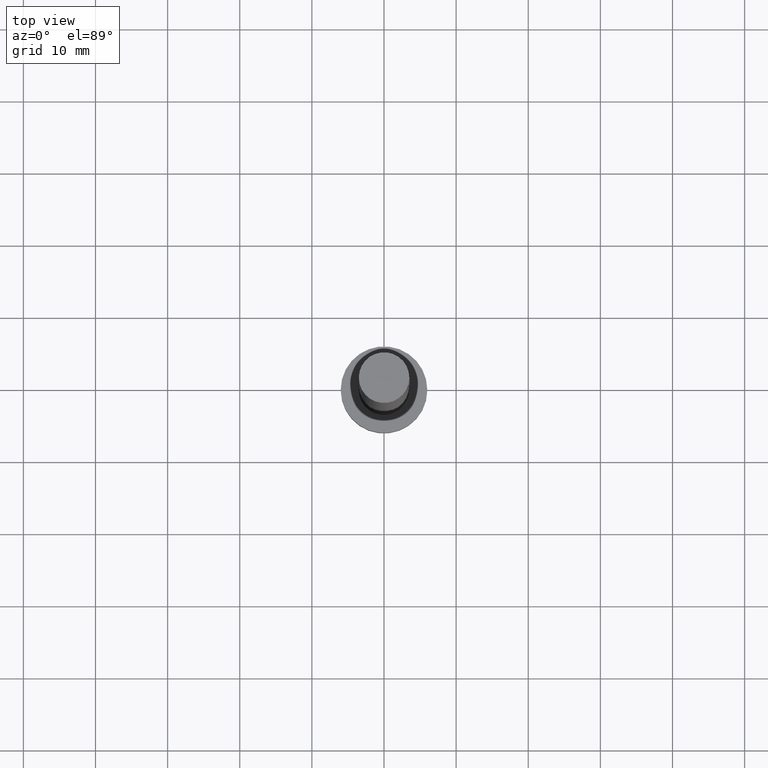
[diagram: clean part render]
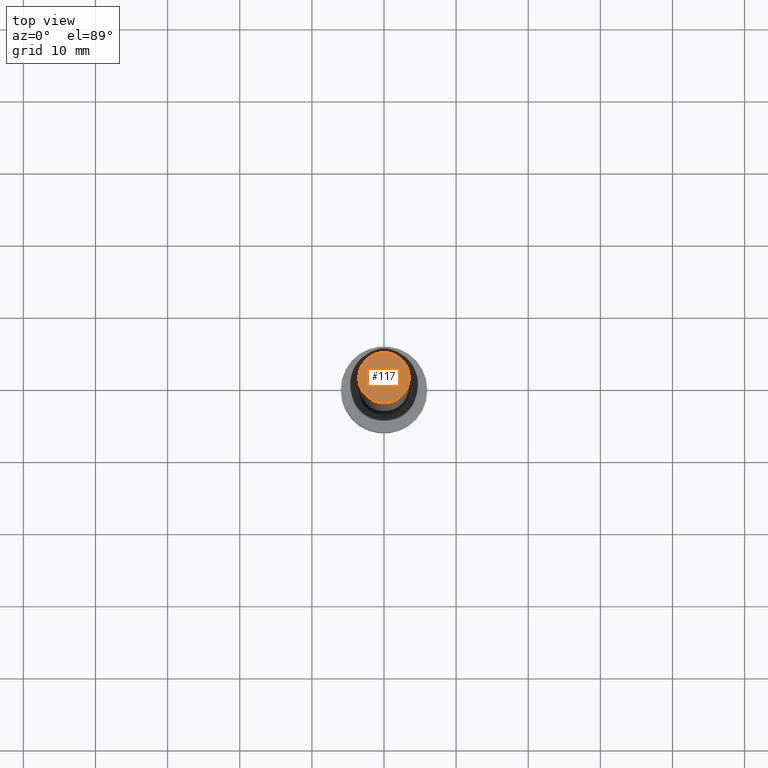
[diagram: same view with one face highlighted and labeled with its STEP entity id]
A machine part, top view. The second image highlights one B-rep face of the part: STEP entity #117.
In plain terms, the highlighted planar face has unit normal (0, 0, 1).
Its self-contained STEP definition (entity closure, byte-faithful):
#5 = PLANE ( 'NONE',  #212 ) ;
#6 = CIRCLE ( 'NONE', #183, 3.500000000000000000 ) ;
#11 = CARTESIAN_POINT ( 'NONE',  ( 0.000000000000000000, 0.000000000000000000, 100.0000000000000000 ) ) ;
#28 = VERTEX_POINT ( 'NONE', #92 ) ;
#37 = DIRECTION ( 'NONE',  ( 0.000000000000000000, 0.000000000000000000, 1.000000000000000000 ) ) ;
#92 = CARTESIAN_POINT ( 'NONE',  ( -3.500000000000000000, 0.000000000000000000, 100.0000000000000000 ) ) ;
#99 = EDGE_CURVE ( 'NONE', #28, #139, #6, .T. ) ;
#101 = ORIENTED_EDGE ( 'NONE', *, *, #99, .T. ) ;
#104 = DIRECTION ( 'NONE',  ( 0.000000000000000000, 0.000000000000000000, 1.000000000000000000 ) ) ;
#112 = CARTESIAN_POINT ( 'NONE',  ( 0.000000000000000000, 0.000000000000000000, 100.0000000000000000 ) ) ;
#117 = ADVANCED_FACE ( 'NONE', ( #178 ), #5, .T. ) ;
#120 = CARTESIAN_POINT ( 'NONE',  ( 3.500000000000000000, 4.286263797015736595E-16, 100.0000000000000000 ) ) ;
#134 = AXIS2_PLACEMENT_3D ( 'NONE', #11, #104, #203 ) ;
#136 = DIRECTION ( 'NONE',  ( 1.000000000000000000, 0.000000000000000000, 0.000000000000000000 ) ) ;
#138 = DIRECTION ( 'NONE',  ( 0.000000000000000000, 0.000000000000000000, 1.000000000000000000 ) ) ;
#139 = VERTEX_POINT ( 'NONE', #120 ) ;
#163 = DIRECTION ( 'NONE',  ( 1.000000000000000000, 0.000000000000000000, -0.000000000000000000 ) ) ;
#178 = FACE_OUTER_BOUND ( 'NONE', #198, .T. ) ;
#183 = AXIS2_PLACEMENT_3D ( 'NONE', #112, #37, #136 ) ;
#198 = EDGE_LOOP ( 'NONE', ( #101, #234 ) ) ;
#203 = DIRECTION ( 'NONE',  ( 1.000000000000000000, 0.000000000000000000, 0.000000000000000000 ) ) ;
#212 = AXIS2_PLACEMENT_3D ( 'NONE', #252, #138, #163 ) ;
#234 = ORIENTED_EDGE ( 'NONE', *, *, #242, .T. ) ;
#242 = EDGE_CURVE ( 'NONE', #139, #28, #243, .T. ) ;
#243 = CIRCLE ( 'NONE', #134, 3.500000000000000000 ) ;
#252 = CARTESIAN_POINT ( 'NONE',  ( 0.000000000000000000, 0.000000000000000000, 100.0000000000000000 ) ) ;